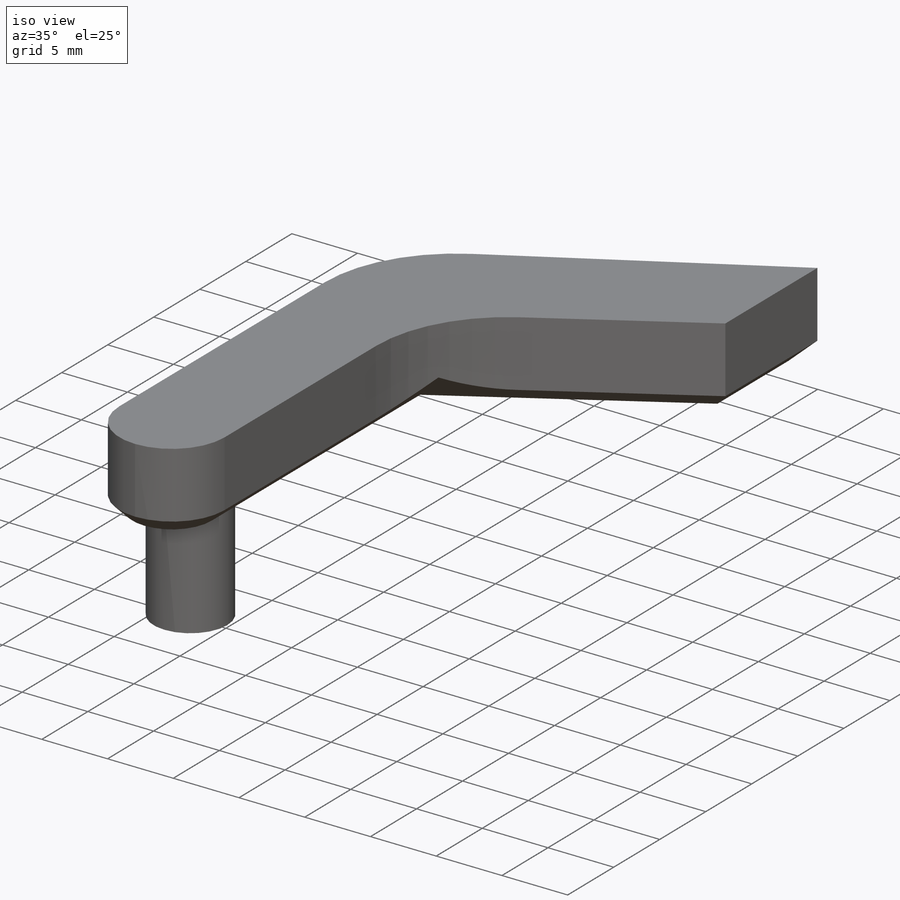
[diagram: iso view]
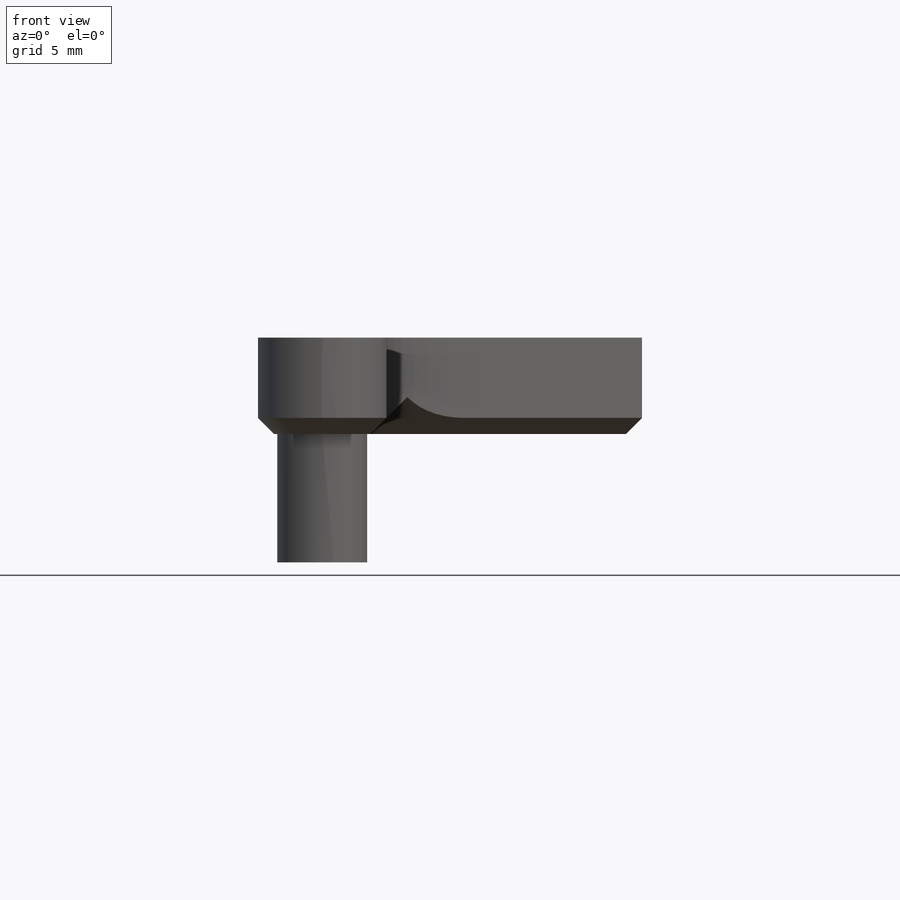
[diagram: front view]
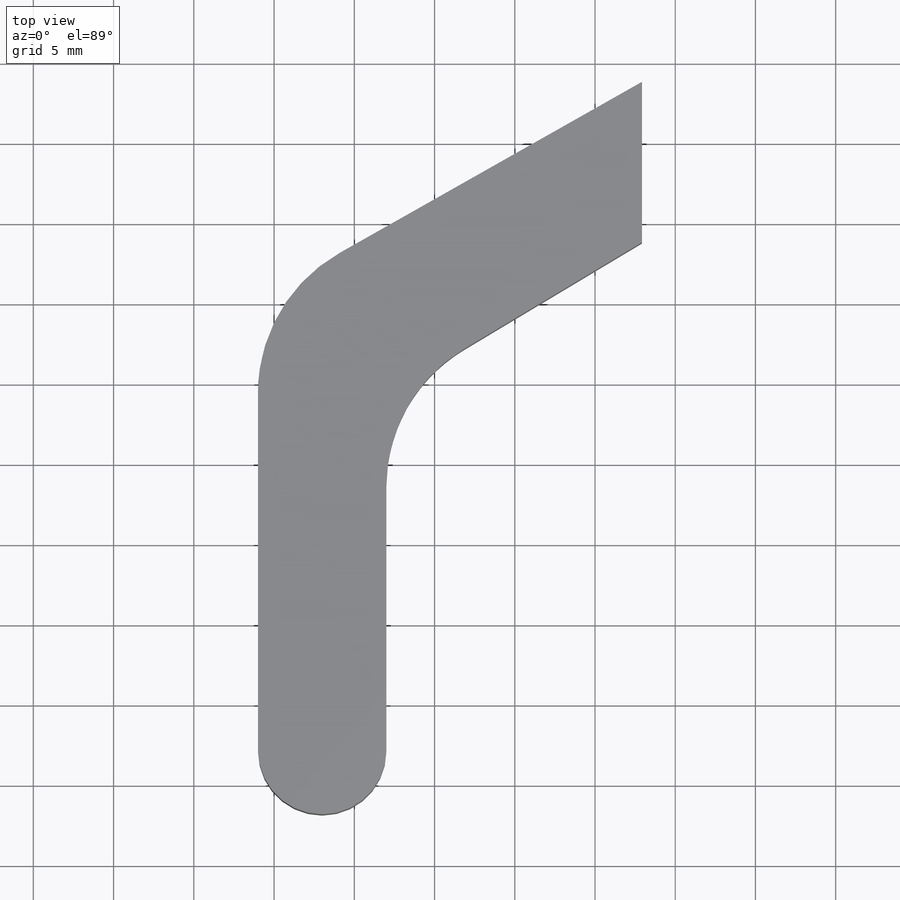
[diagram: top view]
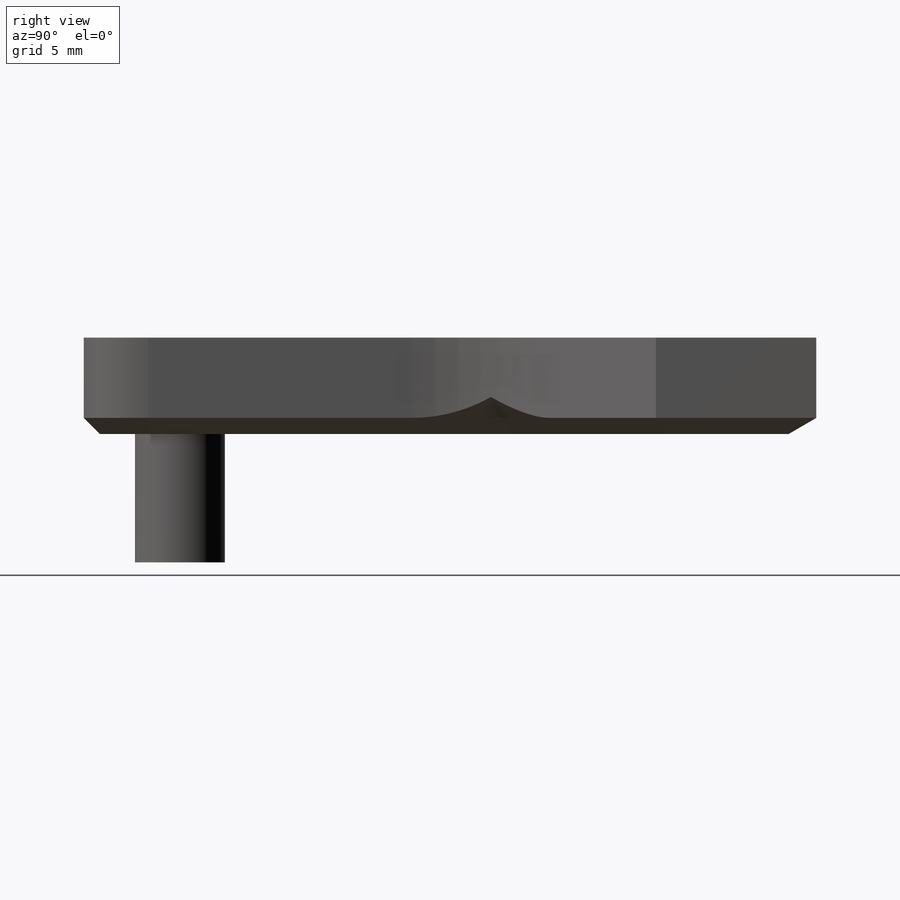
[diagram: right view]
SOLIDWORKS PART (.sldprt)
format: sldprt  version: not decoded by parser v0  size: 392,192 bytes
history: native  units: mm
features: sketch x13, cut_extrude x8, fillet x6, extrude x5, chamfer x3, material x1 (+13 scaffold rows collapsed)
feature tree (49):
  scaffold x13  (default folders/planes/origin — collapsed)
  material  "Material <not specified>"
  sketch  "Sketch1"  dims[D1=40.0mm D2=30.0mm]
  extrude  "Boss-Extrude1"  Depth=12mm
  sketch  "Sketch2"  dims[D1=25.0mm D2=12.5mm D3=12.0mm]
  cut_extrude  "Cut-Extrude1"  Depth=12mm
  sketch  "Sketch3"  dims[D1=6.0mm]
  cut_extrude  "Cut-Extrude2"  Depth=100mm
  fillet  "Fillet1"  Radius=5mm
  sketch  "Sketch4"  dims[D1=7.5mm D2=25.0mm]
  cut_extrude  "Cut-Extrude3"  Depth=12.5mm
  sketch  "Sketch6"
  cut_extrude  "Cut-Extrude4"  Depth=100mm
  sketch  "Sketch7"
  extrude  "Boss-Extrude2"  Depth=20mm
  sketch  "Sketch8"  dims[D1=5.0mm D2=5.0mm D3=10.0mm]
  extrude  "Boss-Extrude3"  [1 undecoded]
  sketch  "Sketch9"  dims[D1=6.0mm D2=8.0mm D3=9.0mm]
  cut_extrude  "Cut-Extrude5"  Depth=20mm
  chamfer  "Chamfer2"  Distance=6mm Angle=56deg
  fillet  "Fillet2"  Radius=5mm
  fillet  "Fillet3"  Radius=3mm
  chamfer  "Chamfer3"  Distance=1mm Angle=45deg
  fillet  "Fillet4"  Radius=3mm
  sketch  "Sketch10"  dims[D1=4.0mm D2=4.0mm D3=6.0mm]
  extrude  "Boss-Extrude4"  [1 undecoded]
  sketch  "Sketch12"  dims[D1=~2.511229mm]
  extrude  "Boss-Extrude5"  Depth=8mm
  sketch  "Sketch13"
  cut_extrude  "Cut-Extrude6"  [1 undecoded]
  sketch  "Sketch14"
  cut_extrude  "Cut-Extrude7"  Depth=8mm
  sketch  "Sketch15"
  cut_extrude  "Cut-Extrude8"  Depth=8mm
  fillet  "Fillet5"  Radius=4mm
  chamfer  "Chamfer5"  Distance=1mm Angle=45deg
  fillet  "Fillet6"  Radius=10mm
decode coverage: 27 of 35 modeling features carry decoded parameters
note: ~ marks probable driven/reference dimensions
note: 3 parameter values undecoded
summary: no parameter record found for 3 features
note: suppression state not decoded; provenance and decode notes live in map.json
